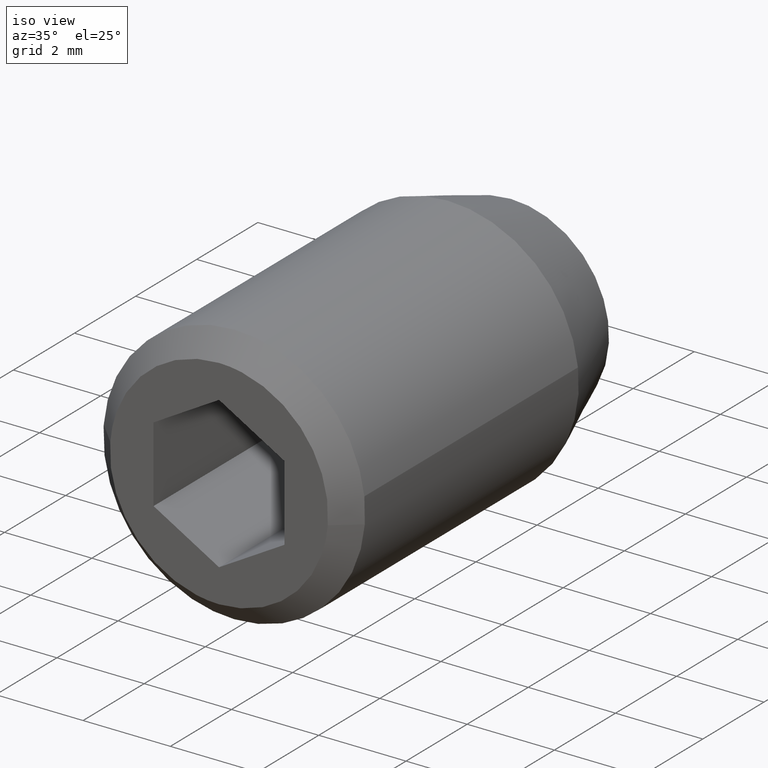
[diagram: clean part render]
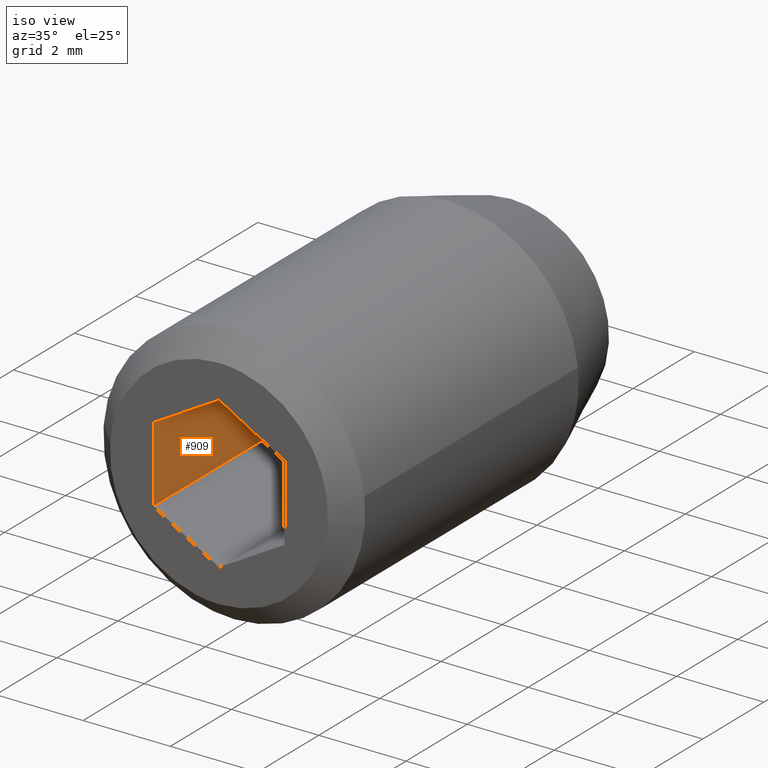
[diagram: same view with one face highlighted and labeled with its STEP entity id]
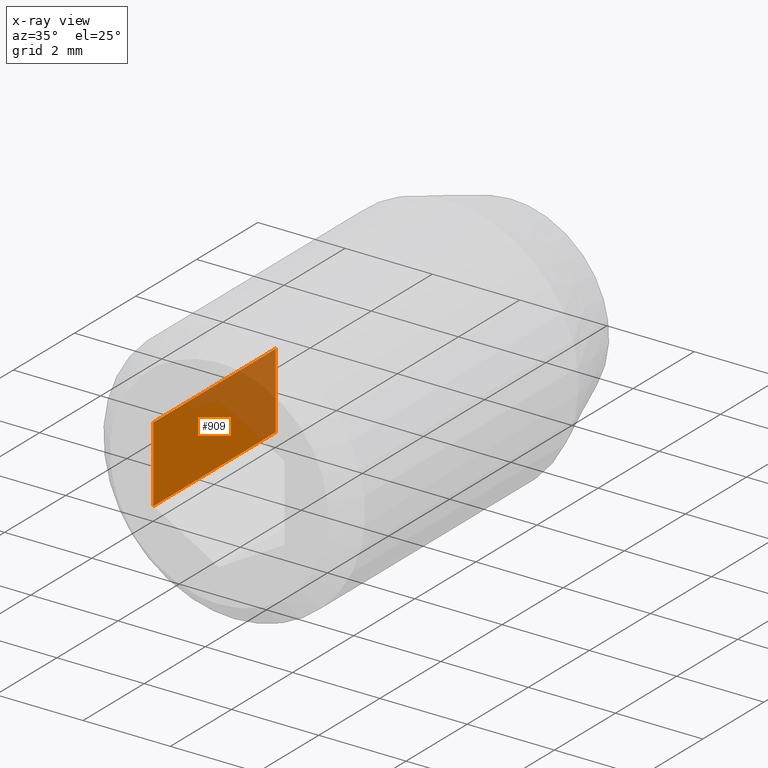
[diagram: x-ray of the same camera — body ghosted, the highlighted face saturated]
A machine part, iso view. The second image highlights one B-rep face of the part: STEP entity #909.
The next image is the same camera in x-ray: the body ghosted, the highlighted face saturated — about 36% of this face is hidden behind the body in this view.
In plain terms, the highlighted face is a freeform B-spline surface patch.
Its self-contained STEP definition (entity closure, byte-faithful):
#733=CARTESIAN_POINT('',(-1.500000000000000,-5.550000000000000,0.866025000000000));
#734=VERTEX_POINT('',#733);
#735=CARTESIAN_POINT('',(-1.500000000000000,-5.550000000000000,-0.866025000000000));
#736=VERTEX_POINT('',#735);
#737=CARTESIAN_POINT('',(-1.500000000000000,-5.550000000000000,0.866025000000000));
#738=CARTESIAN_POINT('',(-1.500000000000000,-5.550000000000000,-0.866025000000000));
#739=QUASI_UNIFORM_CURVE('',1,(#737,#738),.UNSPECIFIED.,.F.,.U.);
#740=EDGE_CURVE('',#734,#736,#739,.T.);
#785=CARTESIAN_POINT('',(-1.500000000000000,-9.549999999999999,0.866025000000000));
#786=VERTEX_POINT('',#785);
#792=CARTESIAN_POINT('',(-1.500000000000000,-5.550000000000000,0.866025000000000));
#793=CARTESIAN_POINT('',(-1.500000000000000,-9.549999999999999,0.866025000000000));
#794=QUASI_UNIFORM_CURVE('',1,(#792,#793),.UNSPECIFIED.,.F.,.U.);
#795=EDGE_CURVE('',#734,#786,#794,.T.);
#877=CARTESIAN_POINT('',(-1.500000000000000,-9.549999999999999,-0.866025000000000));
#878=VERTEX_POINT('',#877);
#886=CARTESIAN_POINT('',(-1.500000000000000,-5.550000000000000,-0.866025000000000));
#887=CARTESIAN_POINT('',(-1.500000000000000,-9.549999999999999,-0.866025000000000));
#888=QUASI_UNIFORM_CURVE('',1,(#886,#887),.UNSPECIFIED.,.F.,.U.);
#889=EDGE_CURVE('',#736,#878,#888,.T.);
#894=CARTESIAN_POINT('',(-1.500000000000000,-9.749800203251244,-0.952540855436359));
#895=CARTESIAN_POINT('',(-1.500000000000000,-9.749800203251244,0.952540808979158));
#896=CARTESIAN_POINT('',(-1.500000000000000,-5.350200190139412,-0.952540855436359));
#897=CARTESIAN_POINT('',(-1.500000000000000,-5.350200190139412,0.952540808979158));
#898=B_SPLINE_SURFACE_WITH_KNOTS('',1,1,((#894,#896),(#895,#897)),.UNSPECIFIED.,.F.,.F.,.U.,(2,2),(2,2),(0.0,1.905081664415518),(0.0,4.399600013111832),.UNSPECIFIED.);
#899=CARTESIAN_POINT('',(-1.500000000000000,-9.549999999999999,0.866025000000000));
#900=CARTESIAN_POINT('',(-1.500000000000000,-9.549999999999999,-0.866025000000000));
#901=QUASI_UNIFORM_CURVE('',1,(#899,#900),.UNSPECIFIED.,.F.,.U.);
#902=EDGE_CURVE('',#786,#878,#901,.T.);
#903=ORIENTED_EDGE('',*,*,#902,.T.);
#904=ORIENTED_EDGE('',*,*,#889,.F.);
#905=ORIENTED_EDGE('',*,*,#740,.F.);
#906=ORIENTED_EDGE('',*,*,#795,.T.);
#907=EDGE_LOOP('',(#903,#904,#905,#906));
#908=FACE_OUTER_BOUND('',#907,.T.);
#909=ADVANCED_FACE('',(#908),#898,.F.);